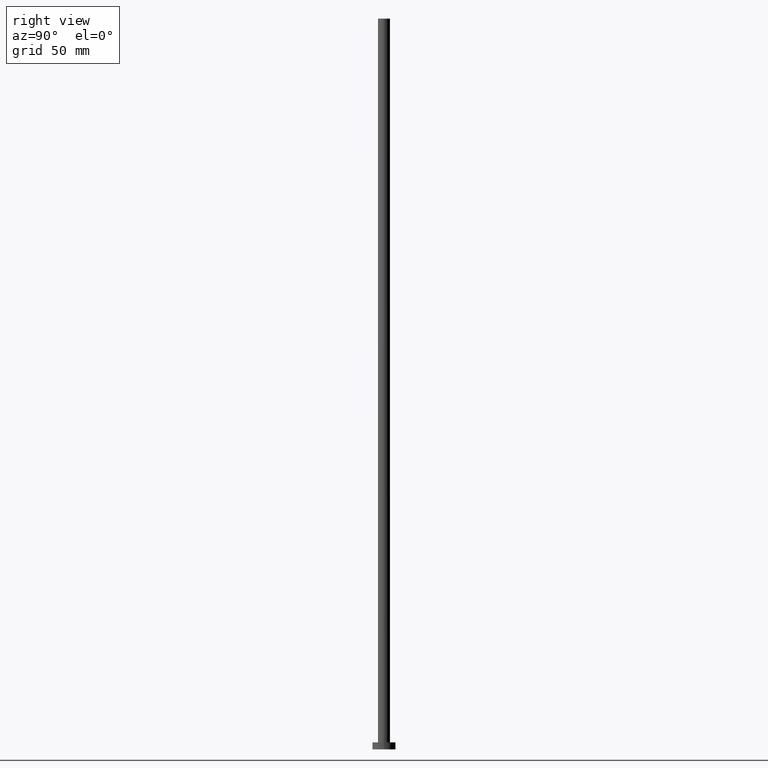
[diagram: clean part render]
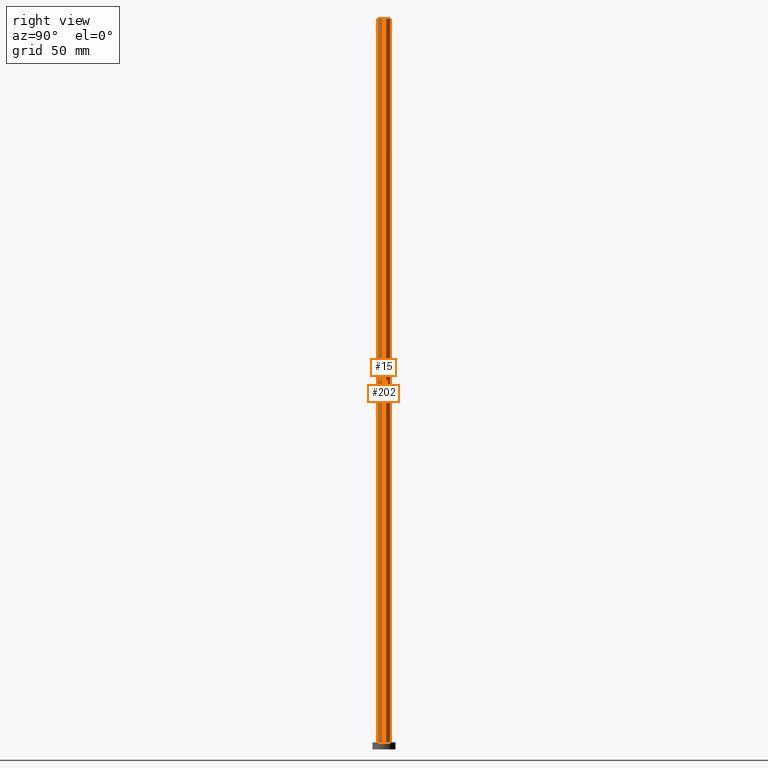
[diagram: same view with one multi-face feature highlighted, each face labeled with its STEP entity id]
A machine part, right view. The highlighted faces form ONE feature: a constant-radius fillet chain: 2 tangent blend faces with common blend radius 2.6 mm. The faces share edges in the B-rep.
Their STEP definitions:
[1] entity #15 (Cylinder):
#12 = DIRECTION ( 'NONE',  ( -1.000000000000000000, 0.000000000000000000, 0.000000000000000000 ) ) ;
#15 = ADVANCED_FACE ( 'NONE', ( #227 ), #224, .T. ) ;
#19 = VERTEX_POINT ( 'NONE', #129 ) ;
#23 = ORIENTED_EDGE ( 'NONE', *, *, #150, .T. ) ;
#30 = DIRECTION ( 'NONE',  ( 1.000000000000000000, 0.000000000000000000, 0.000000000000000000 ) ) ;
#38 = EDGE_LOOP ( 'NONE', ( #255, #102, #23, #245 ) ) ;
#45 = EDGE_CURVE ( 'NONE', #19, #184, #199, .T. ) ;
#68 = AXIS2_PLACEMENT_3D ( 'NONE', #125, #222, #30 ) ;
#72 = DIRECTION ( 'NONE',  ( -0.000000000000000000, -0.000000000000000000, -1.000000000000000000 ) ) ;
#77 = CIRCLE ( 'NONE', #153, 2.600000000000000089 ) ;
#80 = CARTESIAN_POINT ( 'NONE',  ( 0.000000000000000000, 0.000000000000000000, 3.000000000000000000 ) ) ;
#82 = VERTEX_POINT ( 'NONE', #96 ) ;
#92 = DIRECTION ( 'NONE',  ( -0.000000000000000000, -0.000000000000000000, -1.000000000000000000 ) ) ;
#96 = CARTESIAN_POINT ( 'NONE',  ( -2.600000000000000089, 0.000000000000000000, 3.000000000000000000 ) ) ;
#102 = ORIENTED_EDGE ( 'NONE', *, *, #45, .F. ) ;
#103 = VECTOR ( 'NONE', #72, 1000.000000000000000 ) ;
#106 = CARTESIAN_POINT ( 'NONE',  ( 0.000000000000000000, 0.000000000000000000, 315.0000000000000000 ) ) ;
#112 = EDGE_CURVE ( 'NONE', #184, #124, #209, .T. ) ;
#113 = DIRECTION ( 'NONE',  ( -0.000000000000000000, -0.000000000000000000, -1.000000000000000000 ) ) ;
#114 = VECTOR ( 'NONE', #92, 1000.000000000000000 ) ;
#124 = VERTEX_POINT ( 'NONE', #189 ) ;
#125 = CARTESIAN_POINT ( 'NONE',  ( 0.000000000000000000, 0.000000000000000000, 315.0000000000000000 ) ) ;
#129 = CARTESIAN_POINT ( 'NONE',  ( -2.600000000000000089, 0.000000000000000000, 315.0000000000000000 ) ) ;
#135 = AXIS2_PLACEMENT_3D ( 'NONE', #106, #113, #12 ) ;
#150 = EDGE_CURVE ( 'NONE', #19, #82, #168, .T. ) ;
#153 = AXIS2_PLACEMENT_3D ( 'NONE', #80, #215, #231 ) ;
#168 = LINE ( 'NONE', #187, #114 ) ;
#184 = VERTEX_POINT ( 'NONE', #230 ) ;
#187 = CARTESIAN_POINT ( 'NONE',  ( -2.600000000000000089, 0.000000000000000000, 315.0000000000000000 ) ) ;
#189 = CARTESIAN_POINT ( 'NONE',  ( 2.600000000000000089, 3.184081677783118191E-16, 3.000000000000000000 ) ) ;
#199 = CIRCLE ( 'NONE', #68, 2.600000000000000089 ) ;
#209 = LINE ( 'NONE', #246, #103 ) ;
#215 = DIRECTION ( 'NONE',  ( 0.000000000000000000, 0.000000000000000000, 1.000000000000000000 ) ) ;
#222 = DIRECTION ( 'NONE',  ( 0.000000000000000000, 0.000000000000000000, 1.000000000000000000 ) ) ;
#224 = CYLINDRICAL_SURFACE ( 'NONE', #135, 2.600000000000000089 ) ;
#227 = FACE_OUTER_BOUND ( 'NONE', #38, .T. ) ;
#230 = CARTESIAN_POINT ( 'NONE',  ( 2.600000000000000089, 3.184081677783118191E-16, 315.0000000000000000 ) ) ;
#231 = DIRECTION ( 'NONE',  ( 1.000000000000000000, 0.000000000000000000, 0.000000000000000000 ) ) ;
#238 = EDGE_CURVE ( 'NONE', #82, #124, #77, .T. ) ;
#245 = ORIENTED_EDGE ( 'NONE', *, *, #238, .T. ) ;
#246 = CARTESIAN_POINT ( 'NONE',  ( 2.600000000000000089, 3.184081677783118191E-16, 315.0000000000000000 ) ) ;
#255 = ORIENTED_EDGE ( 'NONE', *, *, #112, .F. ) ;
[2] entity #202 (Cylinder):
#1 = EDGE_LOOP ( 'NONE', ( #50, #31, #140, #69 ) ) ;
#5 = CIRCLE ( 'NONE', #33, 2.600000000000000089 ) ;
#19 = VERTEX_POINT ( 'NONE', #129 ) ;
#25 = CIRCLE ( 'NONE', #186, 2.600000000000000089 ) ;
#28 = DIRECTION ( 'NONE',  ( 1.000000000000000000, 0.000000000000000000, 0.000000000000000000 ) ) ;
#31 = ORIENTED_EDGE ( 'NONE', *, *, #112, .T. ) ;
#33 = AXIS2_PLACEMENT_3D ( 'NONE', #88, #93, #28 ) ;
#39 = DIRECTION ( 'NONE',  ( 0.000000000000000000, 0.000000000000000000, 1.000000000000000000 ) ) ;
#40 = CARTESIAN_POINT ( 'NONE',  ( 0.000000000000000000, 0.000000000000000000, 315.0000000000000000 ) ) ;
#50 = ORIENTED_EDGE ( 'NONE', *, *, #182, .F. ) ;
#61 = DIRECTION ( 'NONE',  ( 1.000000000000000000, 0.000000000000000000, 0.000000000000000000 ) ) ;
#69 = ORIENTED_EDGE ( 'NONE', *, *, #150, .F. ) ;
#70 = AXIS2_PLACEMENT_3D ( 'NONE', #40, #139, #155 ) ;
#72 = DIRECTION ( 'NONE',  ( -0.000000000000000000, -0.000000000000000000, -1.000000000000000000 ) ) ;
#82 = VERTEX_POINT ( 'NONE', #96 ) ;
#88 = CARTESIAN_POINT ( 'NONE',  ( 0.000000000000000000, 0.000000000000000000, 3.000000000000000000 ) ) ;
#92 = DIRECTION ( 'NONE',  ( -0.000000000000000000, -0.000000000000000000, -1.000000000000000000 ) ) ;
#93 = DIRECTION ( 'NONE',  ( 0.000000000000000000, 0.000000000000000000, 1.000000000000000000 ) ) ;
#94 = EDGE_CURVE ( 'NONE', #124, #82, #5, .T. ) ;
#96 = CARTESIAN_POINT ( 'NONE',  ( -2.600000000000000089, 0.000000000000000000, 3.000000000000000000 ) ) ;
#103 = VECTOR ( 'NONE', #72, 1000.000000000000000 ) ;
#112 = EDGE_CURVE ( 'NONE', #184, #124, #209, .T. ) ;
#114 = VECTOR ( 'NONE', #92, 1000.000000000000000 ) ;
#124 = VERTEX_POINT ( 'NONE', #189 ) ;
#129 = CARTESIAN_POINT ( 'NONE',  ( -2.600000000000000089, 0.000000000000000000, 315.0000000000000000 ) ) ;
#139 = DIRECTION ( 'NONE',  ( -0.000000000000000000, -0.000000000000000000, -1.000000000000000000 ) ) ;
#140 = ORIENTED_EDGE ( 'NONE', *, *, #94, .T. ) ;
#142 = FACE_OUTER_BOUND ( 'NONE', #1, .T. ) ;
#150 = EDGE_CURVE ( 'NONE', #19, #82, #168, .T. ) ;
#155 = DIRECTION ( 'NONE',  ( -1.000000000000000000, 0.000000000000000000, 0.000000000000000000 ) ) ;
#168 = LINE ( 'NONE', #187, #114 ) ;
#182 = EDGE_CURVE ( 'NONE', #184, #19, #25, .T. ) ;
#184 = VERTEX_POINT ( 'NONE', #230 ) ;
#186 = AXIS2_PLACEMENT_3D ( 'NONE', #198, #39, #61 ) ;
#187 = CARTESIAN_POINT ( 'NONE',  ( -2.600000000000000089, 0.000000000000000000, 315.0000000000000000 ) ) ;
#189 = CARTESIAN_POINT ( 'NONE',  ( 2.600000000000000089, 3.184081677783118191E-16, 3.000000000000000000 ) ) ;
#198 = CARTESIAN_POINT ( 'NONE',  ( 0.000000000000000000, 0.000000000000000000, 315.0000000000000000 ) ) ;
#200 = CYLINDRICAL_SURFACE ( 'NONE', #70, 2.600000000000000089 ) ;
#202 = ADVANCED_FACE ( 'NONE', ( #142 ), #200, .T. ) ;
#209 = LINE ( 'NONE', #246, #103 ) ;
#230 = CARTESIAN_POINT ( 'NONE',  ( 2.600000000000000089, 3.184081677783118191E-16, 315.0000000000000000 ) ) ;
#246 = CARTESIAN_POINT ( 'NONE',  ( 2.600000000000000089, 3.184081677783118191E-16, 315.0000000000000000 ) ) ;